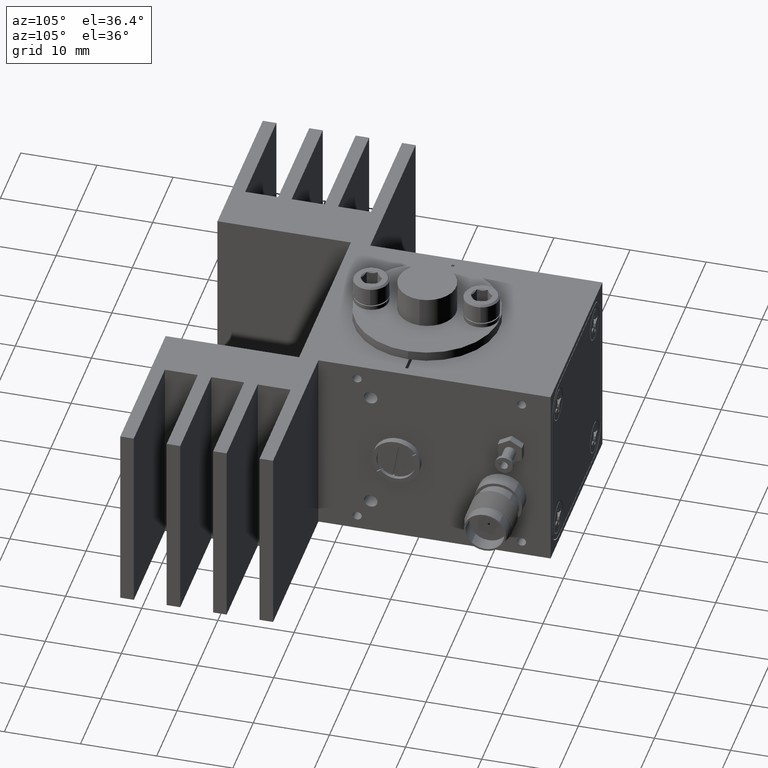
[diagram: clean part render]
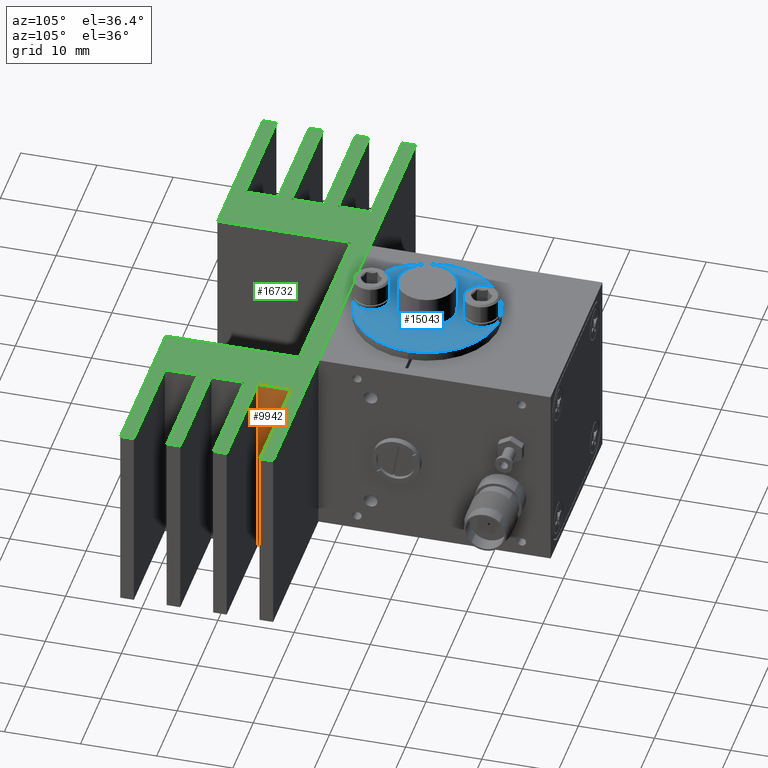
[diagram: same view with three faces highlighted in distinct colors, each labeled with its STEP entity id]
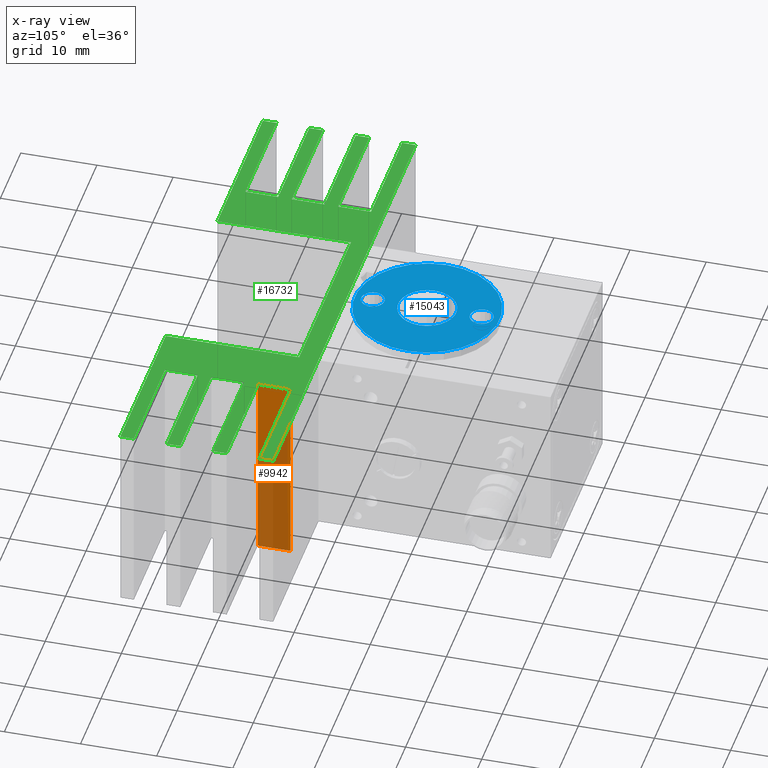
[diagram: x-ray of the same camera — body ghosted, the three highlighted faces saturated]
A machine part, auxiliary view with three faces highlighted in distinct colors.
The next image is the same camera in x-ray (body ghosted, the three faces saturated) — at least one of them is partly hidden behind the body in this view.
Their STEP definitions:

[orange] entity #9942 — the highlighted planar face has unit normal (-1, 0, 0).
#1062 = VERTEX_POINT ( 'NONE', #13193 ) ;
#1235 = VERTEX_POINT ( 'NONE', #11208 ) ;
#1690 = LINE ( 'NONE', #15562, #15556 ) ;
#1791 = CARTESIAN_POINT ( 'NONE',  ( 19.68500000000001300, -13.20799999999999800, -12.69999999999999600 ) ) ;
#2231 = FACE_OUTER_BOUND ( 'NONE', #9749, .T. ) ;
#2818 = VECTOR ( 'NONE', #9619, 1000.000000000000000 ) ;
#3330 = LINE ( 'NONE', #12806, #5223 ) ;
#4005 = EDGE_CURVE ( 'NONE', #1235, #8484, #1690, .T. ) ;
#4125 = CARTESIAN_POINT ( 'NONE',  ( 19.68500000000001300, -17.52600000000000000, -12.69999999999999600 ) ) ;
#5223 = VECTOR ( 'NONE', #15218, 1000.000000000000000 ) ;
#5921 = DIRECTION ( 'NONE',  ( -0.0000000000000000000, 1.000000000000000000, -0.0000000000000000000 ) ) ;
#6862 = DIRECTION ( 'NONE',  ( -1.000000000000000000, 0.0000000000000000000, 0.0000000000000000000 ) ) ;
#7099 = EDGE_CURVE ( 'NONE', #13681, #1062, #11475, .T. ) ;
#7908 = VECTOR ( 'NONE', #5921, 1000.000000000000000 ) ;
#8484 = VERTEX_POINT ( 'NONE', #15450 ) ;
#8814 = DIRECTION ( 'NONE',  ( -0.0000000000000000000, 1.000000000000000000, -0.0000000000000000000 ) ) ;
#9073 = ORIENTED_EDGE ( 'NONE', *, *, #4005, .F. ) ;
#9366 = ORIENTED_EDGE ( 'NONE', *, *, #14320, .F. ) ;
#9619 = DIRECTION ( 'NONE',  ( -0.0000000000000000000, -0.0000000000000000000, -1.000000000000000000 ) ) ;
#9749 = EDGE_LOOP ( 'NONE', ( #13876, #9366, #9073, #10359 ) ) ;
#9942 = ADVANCED_FACE ( 'NONE', ( #2231 ), #15855, .F. ) ;
#10359 = ORIENTED_EDGE ( 'NONE', *, *, #17259, .T. ) ;
#10680 = CARTESIAN_POINT ( 'NONE',  ( 19.68500000000001300, -13.20799999999999800, 12.70000000000000300 ) ) ;
#11208 = CARTESIAN_POINT ( 'NONE',  ( 19.68500000000001300, -17.52600000000000000, 12.70000000000000300 ) ) ;
#11475 = LINE ( 'NONE', #1791, #7908 ) ;
#12806 = CARTESIAN_POINT ( 'NONE',  ( 19.68500000000001300, -17.52600000000000000, 12.70000000000000300 ) ) ;
#13193 = CARTESIAN_POINT ( 'NONE',  ( 19.68500000000001300, -13.20799999999999800, -12.69999999999999600 ) ) ;
#13343 = AXIS2_PLACEMENT_3D ( 'NONE', #10680, #6862, #15014 ) ;
#13681 = VERTEX_POINT ( 'NONE', #4125 ) ;
#13876 = ORIENTED_EDGE ( 'NONE', *, *, #7099, .T. ) ;
#14320 = EDGE_CURVE ( 'NONE', #8484, #1062, #15878, .T. ) ;
#14892 = CARTESIAN_POINT ( 'NONE',  ( 19.68500000000001300, -13.20799999999999800, 12.70000000000000300 ) ) ;
#15014 = DIRECTION ( 'NONE',  ( 0.0000000000000000000, 0.0000000000000000000, 1.000000000000000000 ) ) ;
#15218 = DIRECTION ( 'NONE',  ( -0.0000000000000000000, -0.0000000000000000000, -1.000000000000000000 ) ) ;
#15450 = CARTESIAN_POINT ( 'NONE',  ( 19.68500000000001300, -13.20799999999999800, 12.70000000000000300 ) ) ;
#15556 = VECTOR ( 'NONE', #8814, 1000.000000000000000 ) ;
#15562 = CARTESIAN_POINT ( 'NONE',  ( 19.68500000000001300, -13.20799999999999800, 12.70000000000000300 ) ) ;
#15855 = PLANE ( 'NONE',  #13343 ) ;
#15878 = LINE ( 'NONE', #14892, #2818 ) ;
#17259 = EDGE_CURVE ( 'NONE', #1235, #13681, #3330, .T. ) ;

[blue] entity #15043 — the highlighted planar face has unit normal (-0, 0, -1).
#105 = CIRCLE ( 'NONE', #14487, 1.523999999999998000 ) ;
#1190 = ORIENTED_EDGE ( 'NONE', *, *, #3627, .F. ) ;
#1567 = VERTEX_POINT ( 'NONE', #2476 ) ;
#1738 = CIRCLE ( 'NONE', #13810, 1.524000000000000700 ) ;
#2026 = CARTESIAN_POINT ( 'NONE',  ( 3.821377216013702500, -0.5336705048237859700, 13.97000000000000800 ) ) ;
#2092 = CARTESIAN_POINT ( 'NONE',  ( 0.01138205198695369800, -0.5397409325501590900, 13.97000000000000800 ) ) ;
#2194 = CARTESIAN_POINT ( 'NONE',  ( 9.536369962053829100, -0.5245648632342258000, 13.97000000000000800 ) ) ;
#2476 = CARTESIAN_POINT ( 'NONE',  ( -3.798613112039796100, -0.5458113602765318800, 13.97000000000000800 ) ) ;
#2611 = AXIS2_PLACEMENT_3D ( 'NONE', #16190, #13531, #8044 ) ;
#2741 = VERTEX_POINT ( 'NONE', #11952 ) ;
#2839 = DIRECTION ( 'NONE',  ( 0.9999987307156823500, 0.001593288117158365300, 0.0000000000000000000 ) ) ;
#3055 = DIRECTION ( 'NONE',  ( -6.950252707240244800E-018, 6.264030056288166700E-017, -1.000000000000000000 ) ) ;
#3288 = DIRECTION ( 'NONE',  ( -0.9999987307156823500, -0.001593288117158212400, 6.850439838851421000E-018 ) ) ;
#3627 = EDGE_CURVE ( 'NONE', #5367, #6629, #12213, .T. ) ;
#4242 = ORIENTED_EDGE ( 'NONE', *, *, #12386, .F. ) ;
#4555 = ORIENTED_EDGE ( 'NONE', *, *, #6904, .F. ) ;
#4655 = ORIENTED_EDGE ( 'NONE', *, *, #13221, .F. ) ;
#4834 = CIRCLE ( 'NONE', #12442, 1.523999999999998000 ) ;
#5050 = DIRECTION ( 'NONE',  ( -6.950252707240226300E-018, 6.264030056288166700E-017, -1.000000000000000000 ) ) ;
#5367 = VERTEX_POINT ( 'NONE', #14595 ) ;
#5516 = AXIS2_PLACEMENT_3D ( 'NONE', #13104, #5050, #7596 ) ;
#5761 = AXIS2_PLACEMENT_3D ( 'NONE', #10815, #14857, #6755 ) ;
#6040 = EDGE_LOOP ( 'NONE', ( #6920, #8096 ) ) ;
#6231 = DIRECTION ( 'NONE',  ( -6.950252707240226300E-018, 6.264030056288166700E-017, -1.000000000000000000 ) ) ;
#6346 = DIRECTION ( 'NONE',  ( -0.9999987307156823500, -0.001593288117158221100, 0.0000000000000000000 ) ) ;
#6359 = FACE_OUTER_BOUND ( 'NONE', #11696, .T. ) ;
#6629 = VERTEX_POINT ( 'NONE', #2194 ) ;
#6686 = CARTESIAN_POINT ( 'NONE',  ( 1.546762169584603200, -7.681053694009763800, 13.97000000000001500 ) ) ;
#6755 = DIRECTION ( 'NONE',  ( -0.9999987307156823500, -0.001593288117158221100, 0.0000000000000000000 ) ) ;
#6779 = FACE_BOUND ( 'NONE', #10779, .T. ) ;
#6904 = EDGE_CURVE ( 'NONE', #9815, #9844, #10423, .T. ) ;
#6911 = CIRCLE ( 'NONE', #14898, 3.810000000000000100 ) ;
#6920 = ORIENTED_EDGE ( 'NONE', *, *, #17305, .T. ) ;
#7290 = EDGE_CURVE ( 'NONE', #2741, #9337, #4834, .T. ) ;
#7327 = ORIENTED_EDGE ( 'NONE', *, *, #7290, .F. ) ;
#7379 = DIRECTION ( 'NONE',  ( 6.950252707240226300E-018, -6.264030056288166700E-017, 1.000000000000000000 ) ) ;
#7596 = DIRECTION ( 'NONE',  ( -0.9999987307156823500, -0.001593288117158214800, 0.0000000000000000000 ) ) ;
#8044 = DIRECTION ( 'NONE',  ( 0.9999987307156823500, 0.001593288117158362400, 0.0000000000000000000 ) ) ;
#8096 = ORIENTED_EDGE ( 'NONE', *, *, #13658, .T. ) ;
#8722 = DIRECTION ( 'NONE',  ( 0.9999987307156823500, 0.001593288117158362400, 0.0000000000000000000 ) ) ;
#9337 = VERTEX_POINT ( 'NONE', #12006 ) ;
#9523 = FACE_BOUND ( 'NONE', #6040, .T. ) ;
#9815 = VERTEX_POINT ( 'NONE', #11685 ) ;
#9844 = VERTEX_POINT ( 'NONE', #6686 ) ;
#10303 = VERTEX_POINT ( 'NONE', #2026 ) ;
#10326 = DIRECTION ( 'NONE',  ( -0.9999987307156823500, -0.001593288117158214800, 0.0000000000000000000 ) ) ;
#10336 = ORIENTED_EDGE ( 'NONE', *, *, #11364, .F. ) ;
#10352 = FACE_BOUND ( 'NONE', #14796, .T. ) ;
#10423 = CIRCLE ( 'NONE', #2611, 1.524000000000000700 ) ;
#10779 = EDGE_LOOP ( 'NONE', ( #4242, #4555 ) ) ;
#10815 = CARTESIAN_POINT ( 'NONE',  ( 0.01138205198695369800, -0.5397409325501590900, 13.97000000000000800 ) ) ;
#11004 = DIRECTION ( 'NONE',  ( 6.950252707240226300E-018, -6.264030056288166700E-017, 1.000000000000000000 ) ) ;
#11195 = CIRCLE ( 'NONE', #14514, 9.525000000000002100 ) ;
#11352 = PLANE ( 'NONE',  #16888 ) ;
#11364 = EDGE_CURVE ( 'NONE', #9337, #2741, #105, .T. ) ;
#11510 = DIRECTION ( 'NONE',  ( -6.950252707240226300E-018, 6.264030056288166700E-017, -1.000000000000000000 ) ) ;
#11685 = CARTESIAN_POINT ( 'NONE',  ( -1.501233961636798000, -7.685910036190862500, 13.97000000000001500 ) ) ;
#11696 = EDGE_LOOP ( 'NONE', ( #1190, #4655 ) ) ;
#11952 = CARTESIAN_POINT ( 'NONE',  ( 1.523998065610702800, 6.606428171090544600, 13.97000000000000800 ) ) ;
#12006 = CARTESIAN_POINT ( 'NONE',  ( -1.523998065610693300, 6.601571828909445800, 13.97000000000000800 ) ) ;
#12213 = CIRCLE ( 'NONE', #5516, 9.525000000000002100 ) ;
#12248 = DIRECTION ( 'NONE',  ( 0.9999987307156823500, 0.001593288117158365300, 0.0000000000000000000 ) ) ;
#12373 = CARTESIAN_POINT ( 'NONE',  ( 4.719667582100961500E-015, 6.603999999999995700, 13.97000000000000800 ) ) ;
#12386 = EDGE_CURVE ( 'NONE', #9844, #9815, #1738, .T. ) ;
#12433 = DIRECTION ( 'NONE',  ( 6.950252707240226300E-018, -6.264030056288166700E-017, 1.000000000000000000 ) ) ;
#12442 = AXIS2_PLACEMENT_3D ( 'NONE', #16442, #11004, #12248 ) ;
#12603 = CARTESIAN_POINT ( 'NONE',  ( 0.02276410397390267800, -7.683481865100313600, 13.97000000000001500 ) ) ;
#13104 = CARTESIAN_POINT ( 'NONE',  ( 0.01138205198695369800, -0.5397409325501590900, 13.97000000000000800 ) ) ;
#13221 = EDGE_CURVE ( 'NONE', #6629, #5367, #11195, .T. ) ;
#13531 = DIRECTION ( 'NONE',  ( 6.950252707240226300E-018, -6.264030056288166700E-017, 1.000000000000000000 ) ) ;
#13658 = EDGE_CURVE ( 'NONE', #10303, #1567, #16012, .T. ) ;
#13810 = AXIS2_PLACEMENT_3D ( 'NONE', #12603, #7379, #8722 ) ;
#14487 = AXIS2_PLACEMENT_3D ( 'NONE', #12373, #12433, #2839 ) ;
#14514 = AXIS2_PLACEMENT_3D ( 'NONE', #2092, #11510, #10326 ) ;
#14595 = CARTESIAN_POINT ( 'NONE',  ( -9.513605858079921900, -0.5549170018660910500, 13.97000000000000800 ) ) ;
#14796 = EDGE_LOOP ( 'NONE', ( #7327, #10336 ) ) ;
#14857 = DIRECTION ( 'NONE',  ( -6.950252707240226300E-018, 6.264030056288166700E-017, -1.000000000000000000 ) ) ;
#14898 = AXIS2_PLACEMENT_3D ( 'NONE', #15680, #6231, #6346 ) ;
#15043 = ADVANCED_FACE ( 'NONE', ( #10352, #6779, #6359, #9523 ), #11352, .F. ) ;
#15680 = CARTESIAN_POINT ( 'NONE',  ( 0.01138205198695369800, -0.5397409325501590900, 13.97000000000000800 ) ) ;
#16012 = CIRCLE ( 'NONE', #5761, 3.810000000000000100 ) ;
#16190 = CARTESIAN_POINT ( 'NONE',  ( 0.02276410397390267800, -7.683481865100313600, 13.97000000000001500 ) ) ;
#16442 = CARTESIAN_POINT ( 'NONE',  ( 4.719667582100961500E-015, 6.603999999999995700, 13.97000000000000800 ) ) ;
#16675 = CARTESIAN_POINT ( 'NONE',  ( 0.02655812130288567200, -10.06472884261703400, 13.97000000000001500 ) ) ;
#16888 = AXIS2_PLACEMENT_3D ( 'NONE', #16675, #3055, #3288 ) ;
#17305 = EDGE_CURVE ( 'NONE', #1567, #10303, #6911, .T. ) ;

[green] entity #16732 — the highlighted planar face has unit normal (0, 0, 1).
#165 = LINE ( 'NONE', #15443, #2870 ) ;
#186 = ORIENTED_EDGE ( 'NONE', *, *, #12894, .T. ) ;
#216 = VECTOR ( 'NONE', #7270, 1000.000000000000000 ) ;
#322 = EDGE_CURVE ( 'NONE', #5977, #6010, #13962, .T. ) ;
#481 = VECTOR ( 'NONE', #10476, 1000.000000000000000 ) ;
#533 = EDGE_CURVE ( 'NONE', #11072, #11116, #16700, .T. ) ;
#536 = VECTOR ( 'NONE', #10761, 1000.000000000000000 ) ;
#657 = EDGE_CURVE ( 'NONE', #14123, #2198, #4113, .T. ) ;
#667 = CARTESIAN_POINT ( 'NONE',  ( -34.92499999999999700, -29.71800000000000000, 12.70000000000000300 ) ) ;
#672 = PLANE ( 'NONE',  #9739 ) ;
#709 = ORIENTED_EDGE ( 'NONE', *, *, #8705, .T. ) ;
#1128 = VECTOR ( 'NONE', #13743, 1000.000000000000000 ) ;
#1143 = VERTEX_POINT ( 'NONE', #9456 ) ;
#1150 = DIRECTION ( 'NONE',  ( 1.000000000000000000, -0.0000000000000000000, -0.0000000000000000000 ) ) ;
#1152 = VERTEX_POINT ( 'NONE', #14786 ) ;
#1181 = CARTESIAN_POINT ( 'NONE',  ( -19.68499999999999900, -17.52600000000000000, 12.70000000000000300 ) ) ;
#1233 = ORIENTED_EDGE ( 'NONE', *, *, #4413, .T. ) ;
#1235 = VERTEX_POINT ( 'NONE', #11208 ) ;
#1257 = LINE ( 'NONE', #10294, #9877 ) ;
#1275 = CARTESIAN_POINT ( 'NONE',  ( -34.92499999999999000, -23.62199999999999600, 12.70000000000000300 ) ) ;
#1442 = LINE ( 'NONE', #15816, #15298 ) ;
#1490 = CARTESIAN_POINT ( 'NONE',  ( -19.68499999999999900, -13.20799999999999800, 12.70000000000000300 ) ) ;
#1612 = ORIENTED_EDGE ( 'NONE', *, *, #322, .T. ) ;
#1631 = EDGE_CURVE ( 'NONE', #16145, #5977, #5543, .T. ) ;
#1690 = LINE ( 'NONE', #15562, #15556 ) ;
#1739 = CARTESIAN_POINT ( 'NONE',  ( -19.68499999999999900, -13.20799999999999800, 12.70000000000000300 ) ) ;
#1972 = ORIENTED_EDGE ( 'NONE', *, *, #10245, .T. ) ;
#1987 = VECTOR ( 'NONE', #6639, 1000.000000000000000 ) ;
#1989 = VERTEX_POINT ( 'NONE', #13210 ) ;
#2017 = ORIENTED_EDGE ( 'NONE', *, *, #8779, .T. ) ;
#2082 = FACE_OUTER_BOUND ( 'NONE', #16976, .T. ) ;
#2094 = VECTOR ( 'NONE', #10658, 1000.000000000000000 ) ;
#2126 = EDGE_CURVE ( 'NONE', #11116, #12904, #9096, .T. ) ;
#2198 = VERTEX_POINT ( 'NONE', #7801 ) ;
#2214 = CARTESIAN_POINT ( 'NONE',  ( -34.92499999999999000, -17.52600000000000000, 12.70000000000000300 ) ) ;
#2379 = EDGE_CURVE ( 'NONE', #12904, #7330, #6768, .T. ) ;
#2386 = CARTESIAN_POINT ( 'NONE',  ( -12.69999999999999200, -31.49600000000000200, 12.70000000000000300 ) ) ;
#2448 = ORIENTED_EDGE ( 'NONE', *, *, #12638, .T. ) ;
#2456 = CARTESIAN_POINT ( 'NONE',  ( -34.92499999999999000, -11.43000000000000300, 12.70000000000000300 ) ) ;
#2529 = LINE ( 'NONE', #5653, #6541 ) ;
#2584 = ORIENTED_EDGE ( 'NONE', *, *, #4005, .T. ) ;
#2653 = CARTESIAN_POINT ( 'NONE',  ( -12.69999999999999200, -31.49600000000000200, 12.70000000000000300 ) ) ;
#2712 = CARTESIAN_POINT ( 'NONE',  ( 34.92500000000001800, -31.49600000000000200, 12.70000000000000300 ) ) ;
#2870 = VECTOR ( 'NONE', #14150, 1000.000000000000000 ) ;
#3112 = VECTOR ( 'NONE', #11161, 1000.000000000000000 ) ;
#3146 = LINE ( 'NONE', #8620, #216 ) ;
#3230 = CARTESIAN_POINT ( 'NONE',  ( -34.92499999999999000, -13.20799999999999800, 12.70000000000000300 ) ) ;
#3319 = CARTESIAN_POINT ( 'NONE',  ( -34.92499999999999000, -17.52600000000000000, 12.70000000000000300 ) ) ;
#3351 = DIRECTION ( 'NONE',  ( -3.902639990948943500E-015, -1.000000000000000000, 0.0000000000000000000 ) ) ;
#3353 = VERTEX_POINT ( 'NONE', #8365 ) ;
#3423 = VERTEX_POINT ( 'NONE', #15172 ) ;
#3459 = CARTESIAN_POINT ( 'NONE',  ( 12.70000000000000600, -31.49600000000000200, 12.70000000000000300 ) ) ;
#3502 = CARTESIAN_POINT ( 'NONE',  ( 19.68500000000001300, -23.62199999999999600, 12.70000000000000300 ) ) ;
#3620 = ORIENTED_EDGE ( 'NONE', *, *, #11568, .T. ) ;
#3702 = VERTEX_POINT ( 'NONE', #16160 ) ;
#3829 = CARTESIAN_POINT ( 'NONE',  ( 34.92500000000000400, -11.43000000000000300, 12.70000000000000300 ) ) ;
#3846 = CARTESIAN_POINT ( 'NONE',  ( -19.68499999999999900, -19.30399999999999500, 12.70000000000000300 ) ) ;
#3950 = CARTESIAN_POINT ( 'NONE',  ( -19.68499999999999900, -25.39999999999999900, 12.70000000000000300 ) ) ;
#4005 = EDGE_CURVE ( 'NONE', #1235, #8484, #1690, .T. ) ;
#4040 = CARTESIAN_POINT ( 'NONE',  ( -19.68499999999999900, -23.62199999999999600, 12.70000000000000300 ) ) ;
#4113 = LINE ( 'NONE', #5530, #536 ) ;
#4158 = VECTOR ( 'NONE', #16422, 1000.000000000000000 ) ;
#4262 = CARTESIAN_POINT ( 'NONE',  ( -19.68500000000000200, -29.71800000000000000, 12.70000000000000300 ) ) ;
#4413 = EDGE_CURVE ( 'NONE', #4821, #3423, #3146, .T. ) ;
#4453 = CARTESIAN_POINT ( 'NONE',  ( -34.92499999999999000, -25.39999999999999900, 12.70000000000000300 ) ) ;
#4716 = DIRECTION ( 'NONE',  ( 0.0000000000000000000, 0.0000000000000000000, 1.000000000000000000 ) ) ;
#4821 = VERTEX_POINT ( 'NONE', #6749 ) ;
#4862 = EDGE_CURVE ( 'NONE', #6558, #16841, #9649, .T. ) ;
#4947 = EDGE_CURVE ( 'NONE', #13257, #1143, #9227, .T. ) ;
#4958 = CARTESIAN_POINT ( 'NONE',  ( -34.92499999999999000, -11.43000000000000300, 12.70000000000000300 ) ) ;
#4964 = CARTESIAN_POINT ( 'NONE',  ( -34.92499999999999000, -19.30399999999999500, 12.70000000000000300 ) ) ;
#4965 = VERTEX_POINT ( 'NONE', #16259 ) ;
#5078 = CARTESIAN_POINT ( 'NONE',  ( 34.92500000000000400, -11.43000000000000300, 12.70000000000000300 ) ) ;
#5303 = ORIENTED_EDGE ( 'NONE', *, *, #657, .T. ) ;
#5312 = DIRECTION ( 'NONE',  ( 0.0000000000000000000, -1.000000000000000000, 0.0000000000000000000 ) ) ;
#5530 = CARTESIAN_POINT ( 'NONE',  ( 19.68500000000001300, -19.30399999999999500, 12.70000000000000300 ) ) ;
#5532 = DIRECTION ( 'NONE',  ( 1.000000000000000000, 5.691349986800550800E-017, -0.0000000000000000000 ) ) ;
#5543 = LINE ( 'NONE', #4262, #14353 ) ;
#5647 = DIRECTION ( 'NONE',  ( 0.0000000000000000000, -1.000000000000000000, 0.0000000000000000000 ) ) ;
#5653 = CARTESIAN_POINT ( 'NONE',  ( 34.92500000000000400, -11.43000000000000300, 12.70000000000000300 ) ) ;
#5704 = EDGE_CURVE ( 'NONE', #1143, #14332, #7321, .T. ) ;
#5764 = DIRECTION ( 'NONE',  ( -0.0000000000000000000, 1.000000000000000000, -0.0000000000000000000 ) ) ;
#5785 = EDGE_CURVE ( 'NONE', #3702, #4821, #7729, .T. ) ;
#5839 = EDGE_CURVE ( 'NONE', #15266, #3353, #9835, .T. ) ;
#5957 = ORIENTED_EDGE ( 'NONE', *, *, #4947, .T. ) ;
#5977 = VERTEX_POINT ( 'NONE', #7059 ) ;
#6010 = VERTEX_POINT ( 'NONE', #15164 ) ;
#6097 = EDGE_CURVE ( 'NONE', #9873, #6220, #165, .T. ) ;
#6220 = VERTEX_POINT ( 'NONE', #2214 ) ;
#6541 = VECTOR ( 'NONE', #11002, 1000.000000000000000 ) ;
#6558 = VERTEX_POINT ( 'NONE', #12625 ) ;
#6569 = VECTOR ( 'NONE', #10123, 1000.000000000000000 ) ;
#6613 = DIRECTION ( 'NONE',  ( -1.000000000000000000, 1.138269997360110200E-016, 0.0000000000000000000 ) ) ;
#6639 = DIRECTION ( 'NONE',  ( -1.000000000000000000, 0.0000000000000000000, 0.0000000000000000000 ) ) ;
#6716 = DIRECTION ( 'NONE',  ( 0.0000000000000000000, 1.000000000000000000, 0.0000000000000000000 ) ) ;
#6749 = CARTESIAN_POINT ( 'NONE',  ( 34.92500000000001800, -31.49600000000000200, 12.70000000000000300 ) ) ;
#6768 = LINE ( 'NONE', #12539, #17043 ) ;
#6792 = CARTESIAN_POINT ( 'NONE',  ( -34.92500000000000400, -31.49600000000000200, 12.70000000000000300 ) ) ;
#6864 = ORIENTED_EDGE ( 'NONE', *, *, #1631, .T. ) ;
#6874 = LINE ( 'NONE', #3459, #7933 ) ;
#6987 = ORIENTED_EDGE ( 'NONE', *, *, #10110, .T. ) ;
#7037 = VERTEX_POINT ( 'NONE', #8550 ) ;
#7059 = CARTESIAN_POINT ( 'NONE',  ( -34.92499999999999700, -29.71800000000000000, 12.70000000000000300 ) ) ;
#7085 = EDGE_CURVE ( 'NONE', #2198, #6558, #11687, .T. ) ;
#7254 = ORIENTED_EDGE ( 'NONE', *, *, #9789, .T. ) ;
#7270 = DIRECTION ( 'NONE',  ( -3.902639990948943500E-015, 1.000000000000000000, -0.0000000000000000000 ) ) ;
#7294 = LINE ( 'NONE', #1739, #13357 ) ;
#7321 = LINE ( 'NONE', #3846, #16760 ) ;
#7330 = VERTEX_POINT ( 'NONE', #1490 ) ;
#7331 = LINE ( 'NONE', #8124, #15736 ) ;
#7462 = CARTESIAN_POINT ( 'NONE',  ( 34.92500000000000400, -13.20799999999999800, 12.70000000000000300 ) ) ;
#7489 = DIRECTION ( 'NONE',  ( -1.000000000000000000, -0.0000000000000000000, -0.0000000000000000000 ) ) ;
#7729 = LINE ( 'NONE', #2712, #13811 ) ;
#7801 = CARTESIAN_POINT ( 'NONE',  ( 19.68500000000001300, -19.30399999999999500, 12.70000000000000300 ) ) ;
#7845 = ORIENTED_EDGE ( 'NONE', *, *, #14486, .T. ) ;
#7933 = VECTOR ( 'NONE', #10272, 1000.000000000000000 ) ;
#8040 = VECTOR ( 'NONE', #6613, 1000.000000000000000 ) ;
#8124 = CARTESIAN_POINT ( 'NONE',  ( 34.92500000000000400, -13.20799999999999800, 12.70000000000000300 ) ) ;
#8230 = ORIENTED_EDGE ( 'NONE', *, *, #4862, .T. ) ;
#8254 = DIRECTION ( 'NONE',  ( -1.000000000000000000, 0.0000000000000000000, 0.0000000000000000000 ) ) ;
#8274 = EDGE_CURVE ( 'NONE', #7037, #8647, #1257, .T. ) ;
#8365 = CARTESIAN_POINT ( 'NONE',  ( -12.69999999999999200, -13.96999999999999700, 12.70000000000000300 ) ) ;
#8484 = VERTEX_POINT ( 'NONE', #15450 ) ;
#8493 = DIRECTION ( 'NONE',  ( 1.000000000000000000, -0.0000000000000000000, -0.0000000000000000000 ) ) ;
#8550 = CARTESIAN_POINT ( 'NONE',  ( 19.68500000000001300, -25.39999999999999900, 12.70000000000000300 ) ) ;
#8620 = CARTESIAN_POINT ( 'NONE',  ( 34.92500000000001100, -29.71800000000000000, 12.70000000000000300 ) ) ;
#8621 = ORIENTED_EDGE ( 'NONE', *, *, #6097, .T. ) ;
#8647 = VERTEX_POINT ( 'NONE', #15753 ) ;
#8648 = CARTESIAN_POINT ( 'NONE',  ( 6.071532165918824800E-015, -11.42999999999999600, 12.70000000000000300 ) ) ;
#8655 = ORIENTED_EDGE ( 'NONE', *, *, #14165, .T. ) ;
#8705 = EDGE_CURVE ( 'NONE', #8484, #9642, #7331, .T. ) ;
#8779 = EDGE_CURVE ( 'NONE', #14407, #16145, #10273, .T. ) ;
#8814 = DIRECTION ( 'NONE',  ( -0.0000000000000000000, 1.000000000000000000, -0.0000000000000000000 ) ) ;
#9040 = ORIENTED_EDGE ( 'NONE', *, *, #16538, .T. ) ;
#9096 = LINE ( 'NONE', #2456, #14334 ) ;
#9168 = VECTOR ( 'NONE', #15417, 1000.000000000000000 ) ;
#9171 = EDGE_CURVE ( 'NONE', #8647, #14634, #1442, .T. ) ;
#9193 = VECTOR ( 'NONE', #6716, 1000.000000000000000 ) ;
#9227 = LINE ( 'NONE', #9631, #3112 ) ;
#9246 = ORIENTED_EDGE ( 'NONE', *, *, #11265, .T. ) ;
#9407 = ORIENTED_EDGE ( 'NONE', *, *, #5704, .T. ) ;
#9448 = DIRECTION ( 'NONE',  ( 1.000000000000000000, 0.0000000000000000000, 0.0000000000000000000 ) ) ;
#9456 = CARTESIAN_POINT ( 'NONE',  ( -19.68499999999999900, -19.30399999999999500, 12.70000000000000300 ) ) ;
#9580 = LINE ( 'NONE', #6792, #15440 ) ;
#9631 = CARTESIAN_POINT ( 'NONE',  ( -34.92499999999999000, -19.30399999999999500, 12.70000000000000300 ) ) ;
#9642 = VERTEX_POINT ( 'NONE', #7462 ) ;
#9649 = LINE ( 'NONE', #9694, #14049 ) ;
#9694 = CARTESIAN_POINT ( 'NONE',  ( 34.92500000000000400, -17.52600000000000000, 12.70000000000000300 ) ) ;
#9739 = AXIS2_PLACEMENT_3D ( 'NONE', #8648, #4716, #16575 ) ;
#9788 = VECTOR ( 'NONE', #3351, 1000.000000000000000 ) ;
#9789 = EDGE_CURVE ( 'NONE', #1989, #3702, #6874, .T. ) ;
#9835 = LINE ( 'NONE', #2653, #9193 ) ;
#9873 = VERTEX_POINT ( 'NONE', #1181 ) ;
#9877 = VECTOR ( 'NONE', #1150, 1000.000000000000000 ) ;
#10110 = EDGE_CURVE ( 'NONE', #4965, #14407, #11300, .T. ) ;
#10123 = DIRECTION ( 'NONE',  ( 1.000000000000000000, 0.0000000000000000000, 0.0000000000000000000 ) ) ;
#10245 = EDGE_CURVE ( 'NONE', #6220, #13257, #12141, .T. ) ;
#10272 = DIRECTION ( 'NONE',  ( -0.0000000000000000000, -1.000000000000000000, -0.0000000000000000000 ) ) ;
#10273 = LINE ( 'NONE', #3950, #16978 ) ;
#10294 = CARTESIAN_POINT ( 'NONE',  ( 34.92500000000000400, -25.39999999999999900, 12.70000000000000300 ) ) ;
#10364 = DIRECTION ( 'NONE',  ( -1.000000000000000000, -0.0000000000000000000, -0.0000000000000000000 ) ) ;
#10476 = DIRECTION ( 'NONE',  ( -8.034847040189001300E-016, 1.000000000000000000, -0.0000000000000000000 ) ) ;
#10658 = DIRECTION ( 'NONE',  ( 0.0000000000000000000, -1.000000000000000000, 0.0000000000000000000 ) ) ;
#10749 = ORIENTED_EDGE ( 'NONE', *, *, #533, .T. ) ;
#10761 = DIRECTION ( 'NONE',  ( -0.0000000000000000000, 1.000000000000000000, -0.0000000000000000000 ) ) ;
#10781 = LINE ( 'NONE', #11900, #481 ) ;
#11002 = DIRECTION ( 'NONE',  ( -0.0000000000000000000, 1.000000000000000000, -0.0000000000000000000 ) ) ;
#11072 = VERTEX_POINT ( 'NONE', #5078 ) ;
#11116 = VERTEX_POINT ( 'NONE', #4958 ) ;
#11118 = CARTESIAN_POINT ( 'NONE',  ( 19.68500000000001300, -23.62199999999999600, 12.70000000000000300 ) ) ;
#11144 = CARTESIAN_POINT ( 'NONE',  ( 19.68500000000001600, -29.71800000000000000, 12.70000000000000300 ) ) ;
#11161 = DIRECTION ( 'NONE',  ( 1.000000000000000000, 0.0000000000000000000, 0.0000000000000000000 ) ) ;
#11208 = CARTESIAN_POINT ( 'NONE',  ( 19.68500000000001300, -17.52600000000000000, 12.70000000000000300 ) ) ;
#11254 = CARTESIAN_POINT ( 'NONE',  ( -19.68499999999999900, -25.39999999999999900, 12.70000000000000300 ) ) ;
#11261 = CARTESIAN_POINT ( 'NONE',  ( -12.69999999999999200, -13.96999999999999700, 12.70000000000000300 ) ) ;
#11265 = EDGE_CURVE ( 'NONE', #6010, #15266, #9580, .T. ) ;
#11300 = LINE ( 'NONE', #4453, #4158 ) ;
#11568 = EDGE_CURVE ( 'NONE', #16841, #1235, #16472, .T. ) ;
#11687 = LINE ( 'NONE', #12601, #15032 ) ;
#11765 = DIRECTION ( 'NONE',  ( -0.0000000000000000000, 1.000000000000000000, -0.0000000000000000000 ) ) ;
#11900 = CARTESIAN_POINT ( 'NONE',  ( 19.68500000000001300, -25.39999999999999900, 12.70000000000000300 ) ) ;
#12084 = DIRECTION ( 'NONE',  ( 1.000000000000000000, -0.0000000000000000000, -0.0000000000000000000 ) ) ;
#12141 = LINE ( 'NONE', #3319, #9168 ) ;
#12266 = VERTEX_POINT ( 'NONE', #11144 ) ;
#12273 = LINE ( 'NONE', #12833, #15606 ) ;
#12361 = EDGE_CURVE ( 'NONE', #3353, #1989, #14125, .T. ) ;
#12468 = EDGE_CURVE ( 'NONE', #3423, #12266, #12273, .T. ) ;
#12539 = CARTESIAN_POINT ( 'NONE',  ( -34.92499999999999000, -13.20799999999999800, 12.70000000000000300 ) ) ;
#12601 = CARTESIAN_POINT ( 'NONE',  ( 34.92500000000000400, -19.30399999999999500, 12.70000000000000300 ) ) ;
#12609 = CARTESIAN_POINT ( 'NONE',  ( -19.68500000000000200, -29.71800000000000000, 12.70000000000000300 ) ) ;
#12625 = CARTESIAN_POINT ( 'NONE',  ( 34.92500000000000400, -19.30399999999999500, 12.70000000000000300 ) ) ;
#12638 = EDGE_CURVE ( 'NONE', #12266, #7037, #10781, .T. ) ;
#12833 = CARTESIAN_POINT ( 'NONE',  ( 19.68500000000001600, -29.71800000000000000, 12.70000000000000300 ) ) ;
#12894 = EDGE_CURVE ( 'NONE', #14634, #14123, #17279, .T. ) ;
#12904 = VERTEX_POINT ( 'NONE', #3230 ) ;
#13178 = ORIENTED_EDGE ( 'NONE', *, *, #12361, .T. ) ;
#13210 = CARTESIAN_POINT ( 'NONE',  ( 12.70000000000000600, -13.96999999999999700, 12.70000000000000300 ) ) ;
#13257 = VERTEX_POINT ( 'NONE', #4964 ) ;
#13357 = VECTOR ( 'NONE', #13819, 1000.000000000000000 ) ;
#13381 = ORIENTED_EDGE ( 'NONE', *, *, #2126, .T. ) ;
#13555 = ORIENTED_EDGE ( 'NONE', *, *, #15595, .T. ) ;
#13743 = DIRECTION ( 'NONE',  ( -1.000000000000000000, -1.138269997360110200E-016, -0.0000000000000000000 ) ) ;
#13811 = VECTOR ( 'NONE', #12084, 1000.000000000000000 ) ;
#13819 = DIRECTION ( 'NONE',  ( 0.0000000000000000000, -1.000000000000000000, 0.0000000000000000000 ) ) ;
#13962 = LINE ( 'NONE', #667, #9788 ) ;
#14049 = VECTOR ( 'NONE', #5764, 1000.000000000000000 ) ;
#14123 = VERTEX_POINT ( 'NONE', #3502 ) ;
#14125 = LINE ( 'NONE', #11261, #6569 ) ;
#14150 = DIRECTION ( 'NONE',  ( -1.000000000000000000, 0.0000000000000000000, 0.0000000000000000000 ) ) ;
#14165 = EDGE_CURVE ( 'NONE', #14332, #1152, #17032, .T. ) ;
#14332 = VERTEX_POINT ( 'NONE', #14833 ) ;
#14334 = VECTOR ( 'NONE', #5647, 1000.000000000000000 ) ;
#14353 = VECTOR ( 'NONE', #8254, 1000.000000000000000 ) ;
#14407 = VERTEX_POINT ( 'NONE', #11254 ) ;
#14486 = EDGE_CURVE ( 'NONE', #7330, #9873, #7294, .T. ) ;
#14634 = VERTEX_POINT ( 'NONE', #15708 ) ;
#14786 = CARTESIAN_POINT ( 'NONE',  ( -34.92499999999999000, -23.62199999999999600, 12.70000000000000300 ) ) ;
#14833 = CARTESIAN_POINT ( 'NONE',  ( -19.68499999999999900, -23.62199999999999600, 12.70000000000000300 ) ) ;
#14936 = ORIENTED_EDGE ( 'NONE', *, *, #7085, .T. ) ;
#15032 = VECTOR ( 'NONE', #8493, 1000.000000000000000 ) ;
#15164 = CARTESIAN_POINT ( 'NONE',  ( -34.92500000000000400, -31.49600000000000200, 12.70000000000000300 ) ) ;
#15172 = CARTESIAN_POINT ( 'NONE',  ( 34.92500000000001100, -29.71800000000000000, 12.70000000000000300 ) ) ;
#15234 = DIRECTION ( 'NONE',  ( 1.000000000000000000, -5.691349986800550800E-017, 0.0000000000000000000 ) ) ;
#15266 = VERTEX_POINT ( 'NONE', #2386 ) ;
#15298 = VECTOR ( 'NONE', #11765, 1000.000000000000000 ) ;
#15417 = DIRECTION ( 'NONE',  ( 0.0000000000000000000, -1.000000000000000000, 0.0000000000000000000 ) ) ;
#15440 = VECTOR ( 'NONE', #9448, 1000.000000000000000 ) ;
#15443 = CARTESIAN_POINT ( 'NONE',  ( -19.68499999999999900, -17.52600000000000000, 12.70000000000000300 ) ) ;
#15444 = ORIENTED_EDGE ( 'NONE', *, *, #9171, .T. ) ;
#15448 = CARTESIAN_POINT ( 'NONE',  ( 34.92500000000000400, -17.52600000000000000, 12.70000000000000300 ) ) ;
#15450 = CARTESIAN_POINT ( 'NONE',  ( 19.68500000000001300, -13.20799999999999800, 12.70000000000000300 ) ) ;
#15556 = VECTOR ( 'NONE', #8814, 1000.000000000000000 ) ;
#15562 = CARTESIAN_POINT ( 'NONE',  ( 19.68500000000001300, -13.20799999999999800, 12.70000000000000300 ) ) ;
#15595 = EDGE_CURVE ( 'NONE', #9642, #11072, #2529, .T. ) ;
#15606 = VECTOR ( 'NONE', #10364, 1000.000000000000000 ) ;
#15706 = CARTESIAN_POINT ( 'NONE',  ( 19.68500000000001300, -17.52600000000000000, 12.70000000000000300 ) ) ;
#15708 = CARTESIAN_POINT ( 'NONE',  ( 34.92500000000000400, -23.62199999999999600, 12.70000000000000300 ) ) ;
#15736 = VECTOR ( 'NONE', #5532, 1000.000000000000000 ) ;
#15753 = CARTESIAN_POINT ( 'NONE',  ( 34.92500000000000400, -25.39999999999999900, 12.70000000000000300 ) ) ;
#15816 = CARTESIAN_POINT ( 'NONE',  ( 34.92500000000000400, -23.62199999999999600, 12.70000000000000300 ) ) ;
#15935 = ORIENTED_EDGE ( 'NONE', *, *, #2379, .T. ) ;
#15936 = ORIENTED_EDGE ( 'NONE', *, *, #8274, .T. ) ;
#16048 = DIRECTION ( 'NONE',  ( -8.034847040189001300E-016, -1.000000000000000000, 0.0000000000000000000 ) ) ;
#16073 = ORIENTED_EDGE ( 'NONE', *, *, #12468, .T. ) ;
#16145 = VERTEX_POINT ( 'NONE', #12609 ) ;
#16160 = CARTESIAN_POINT ( 'NONE',  ( 12.70000000000000600, -31.49600000000000200, 12.70000000000000300 ) ) ;
#16259 = CARTESIAN_POINT ( 'NONE',  ( -34.92499999999999000, -25.39999999999999900, 12.70000000000000300 ) ) ;
#16422 = DIRECTION ( 'NONE',  ( 1.000000000000000000, 0.0000000000000000000, 0.0000000000000000000 ) ) ;
#16470 = ORIENTED_EDGE ( 'NONE', *, *, #5839, .T. ) ;
#16472 = LINE ( 'NONE', #15706, #17087 ) ;
#16538 = EDGE_CURVE ( 'NONE', #1152, #4965, #16807, .T. ) ;
#16575 = DIRECTION ( 'NONE',  ( 1.000000000000000000, 0.0000000000000000000, -0.0000000000000000000 ) ) ;
#16700 = LINE ( 'NONE', #3829, #1987 ) ;
#16732 = ADVANCED_FACE ( 'NONE', ( #2082 ), #672, .T. ) ;
#16760 = VECTOR ( 'NONE', #5312, 1000.000000000000000 ) ;
#16807 = LINE ( 'NONE', #1275, #2094 ) ;
#16841 = VERTEX_POINT ( 'NONE', #15448 ) ;
#16959 = ORIENTED_EDGE ( 'NONE', *, *, #5785, .T. ) ;
#16976 = EDGE_LOOP ( 'NONE', ( #13381, #15935, #7845, #8621, #1972, #5957, #9407, #8655, #9040, #6987, #2017, #6864, #1612, #9246, #16470, #13178, #7254, #16959, #1233, #16073, #2448, #15936, #15444, #186, #5303, #14936, #8230, #3620, #2584, #709, #13555, #10749 ) ) ;
#16978 = VECTOR ( 'NONE', #16048, 1000.000000000000000 ) ;
#17032 = LINE ( 'NONE', #4040, #8040 ) ;
#17043 = VECTOR ( 'NONE', #15234, 1000.000000000000000 ) ;
#17087 = VECTOR ( 'NONE', #7489, 1000.000000000000000 ) ;
#17279 = LINE ( 'NONE', #11118, #1128 ) ;